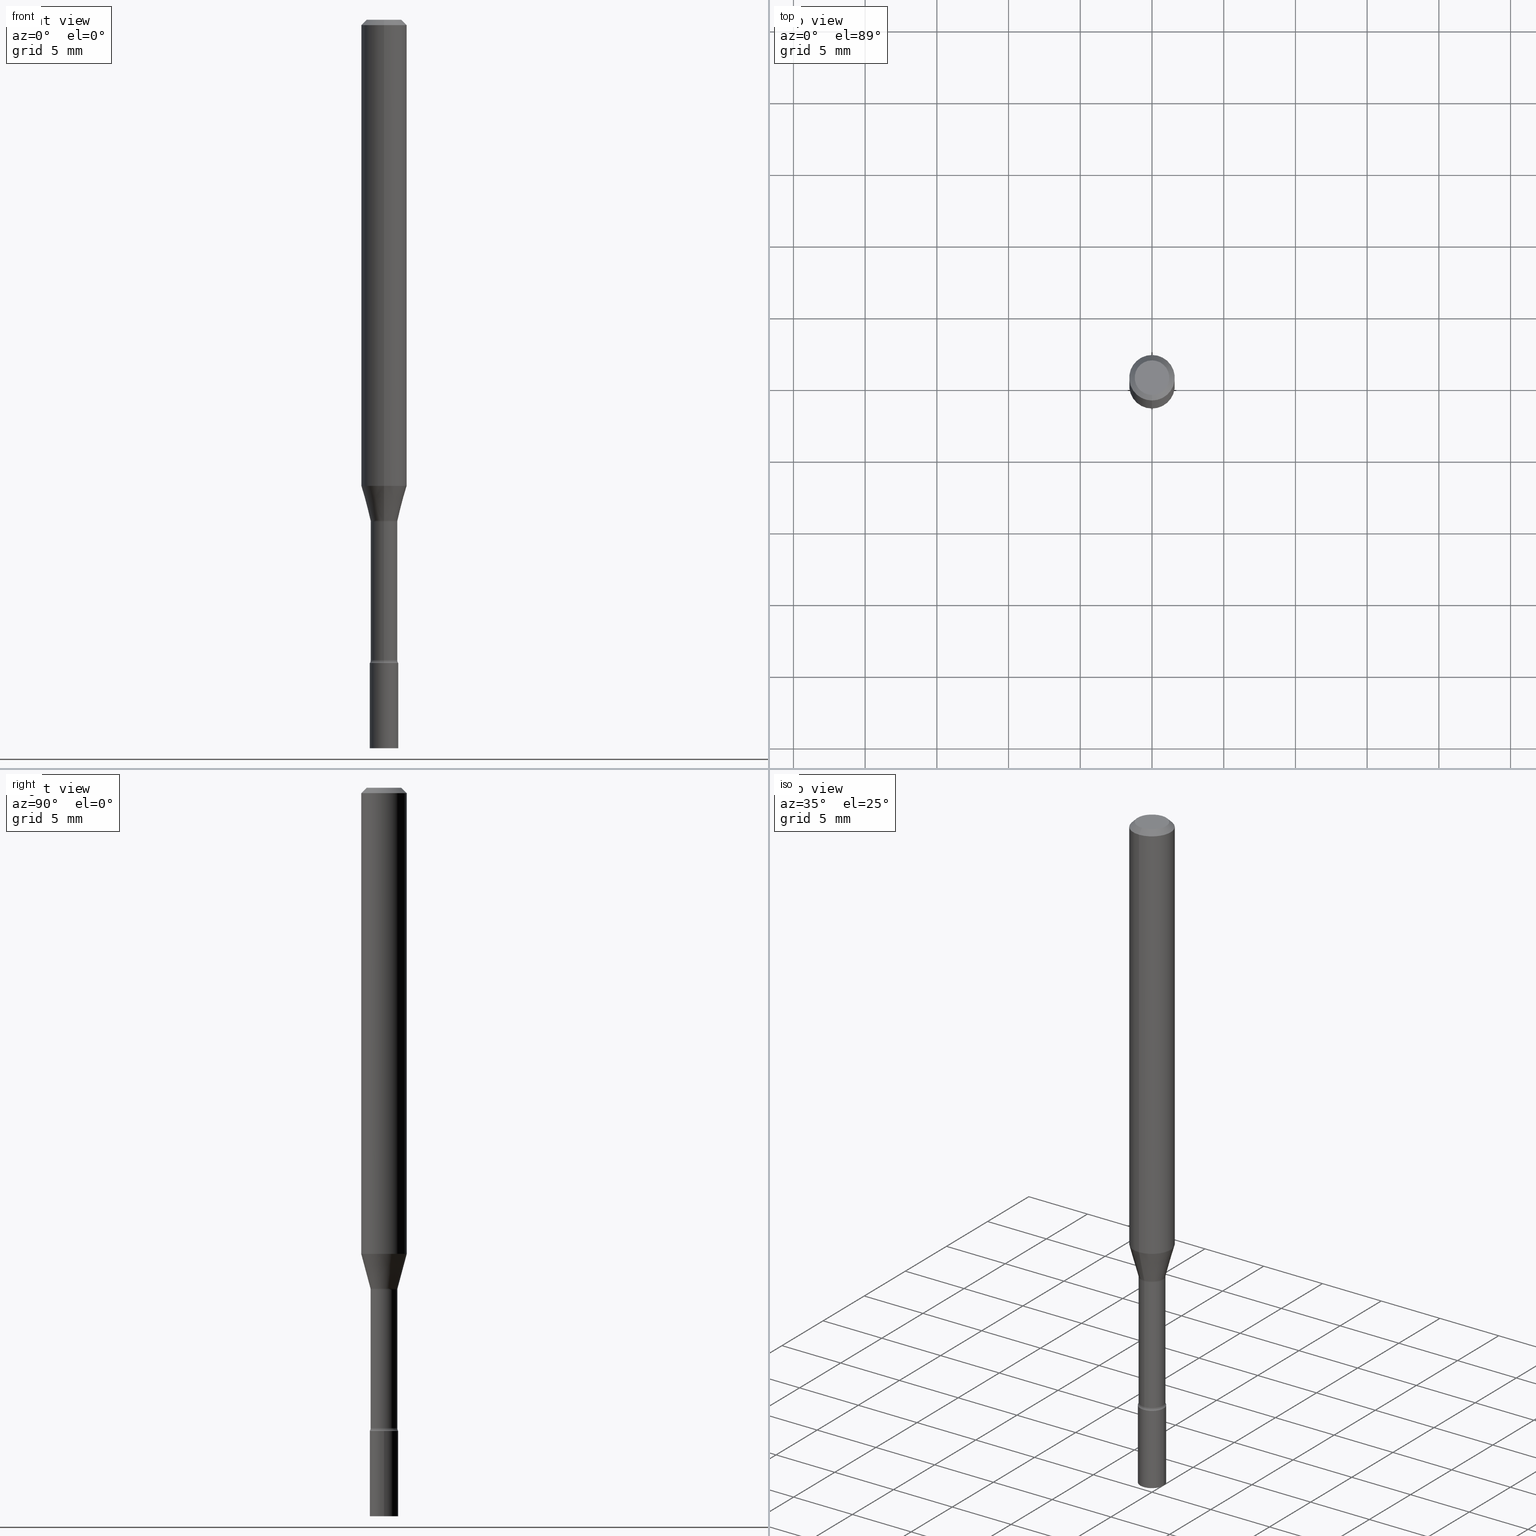
[diagram: canonical four-view strip — front | top / right | iso, engineering-drawing reading convention]
A machine part, canonical four-view strip (front | top / right | iso — engineering-drawing reading convention). The complete STEP part file that produces these views, byte-faithful:
ISO-10303-21;
HEADER;
FILE_DESCRIPTION (( 'STEP AP203' ),
    '1' );
FILE_NAME ('04283.STEP',
    '2024-03-08T22:49:44',
    ( '' ),
    ( '' ),
    'SwSTEP 2.0',
    'SolidWorks 2023',
    '' );
FILE_SCHEMA (( 'CONFIG_CONTROL_DESIGN' ));
ENDSEC;

DATA;
#1 = ORIENTED_EDGE ( 'NONE', *, *, #40, .F. ) ;
#2 = CARTESIAN_POINT ( 'NONE',  ( -4.364351673553912750E-16, -0.06250000000000005551, -0.01499999999999981209 ) ) ;
#3 = CARTESIAN_POINT ( 'NONE',  ( 4.318697911722950844E-29, -6.165956044396995152E-15, -1.766000000000000014 ) ) ;
#4 = ADVANCED_FACE ( 'NONE', ( #241 ), #368, .T. ) ;
#5 = DIRECTION ( 'NONE',  ( -6.982962677686266711E-15, -1.000000000000000000, 3.491516399267517644E-15 ) ) ;
#6 = EDGE_LOOP ( 'NONE', ( #61, #442, #425, #50 ) ) ;
#7 = EDGE_CURVE ( 'NONE', #417, #287, #84, .T. ) ;
#8 = AXIS2_PLACEMENT_3D ( 'NONE', #240, #486, #299 ) ;
#9 = CARTESIAN_POINT ( 'NONE',  ( 3.129010783639058440E-29, -4.467487711346049103E-15, -1.279526486624344761 ) ) ;
#10 = APPROVAL_PERSON_ORGANIZATION ( #418, #242, #257 ) ;
#11 = DIRECTION ( 'NONE',  ( -2.445444323621651242E-29, 3.491516399267517644E-15, 1.000000000000000000 ) ) ;
#12 =( LENGTH_UNIT ( ) NAMED_UNIT ( * ) SI_UNIT ( $, .METRE. ) );
#13 = APPROVAL ( #114, 'UNSPECIFIED' ) ;
#14 = DIRECTION ( 'NONE',  ( -2.445444323621651242E-29, 3.491516399267517644E-15, 1.000000000000000000 ) ) ;
#15 = DATE_AND_TIME ( #460, #510 ) ;
#16 = CIRCLE ( 'NONE', #8, 0.01500000000000001853 ) ;
#17 = PRODUCT_DEFINITION_FORMATION_WITH_SPECIFIED_SOURCE ( 'ANY', '', #282, .NOT_KNOWN. ) ;
#18 = CALENDAR_DATE ( 2024, 8, 3 ) ;
#19 = DIRECTION ( 'NONE',  ( -6.982962677686267499E-15, -1.000000000000000000, 0.000000000000000000 ) ) ;
#20 = DIRECTION ( 'NONE',  ( -2.445468806185136597E-29, 3.491481338843145583E-15, 1.000000000000000000 ) ) ;
#21 = VERTEX_POINT ( 'NONE', #2 ) ;
#22 = DIRECTION ( 'NONE',  ( -6.982962677686265133E-15, -1.000000000000000000, 3.491516399267517250E-15 ) ) ;
#23 = DATE_AND_TIME ( #18, #378 ) ;
#24 = ADVANCED_FACE ( 'NONE', ( #169 ), #155, .T. ) ;
#25 = DIRECTION ( 'NONE',  ( -6.982962677686264344E-15, -1.000000000000000000, 0.000000000000000000 ) ) ;
#26 = ADVANCED_FACE ( 'NONE', ( #130 ), #328, .F. ) ;
#27 = CARTESIAN_POINT ( 'NONE',  ( 3.840629472727447874E-16, 0.04749999999999999362, -1.947592745229183872E-16 ) ) ;
#28 = CARTESIAN_POINT ( 'NONE',  ( -4.364351673553916201E-16, -0.06250000000000000000, 2.182197749542198527E-16 ) ) ;
#29 = AXIS2_PLACEMENT_3D ( 'NONE', #290, #446, #386 ) ;
#30 = FACE_OUTER_BOUND ( 'NONE', #81, .T. ) ;
#31 = ORIENTED_EDGE ( 'NONE', *, *, #515, .T. ) ;
#32 = LINE ( 'NONE', #466, #340 ) ;
#33 = CARTESIAN_POINT ( 'NONE',  ( 3.369794358452343236E-29, -4.811173255826245661E-15, -1.377974787463811079 ) ) ;
#34 = EDGE_CURVE ( 'NONE', #371, #470, #88, .T. ) ;
#35 = CARTESIAN_POINT ( 'NONE',  ( 3.668166485432484237E-31, -5.237274598901286943E-17, -0.01500000000000003067 ) ) ;
#36 = VERTEX_POINT ( 'NONE', #317 ) ;
#37 = VERTEX_POINT ( 'NONE', #294 ) ;
#38 = ORIENTED_EDGE ( 'NONE', *, *, #231, .F. ) ;
#39 = ORIENTED_EDGE ( 'NONE', *, *, #344, .F. ) ;
#40 = EDGE_CURVE ( 'NONE', #470, #21, #121, .T. ) ;
#41 = EDGE_LOOP ( 'NONE', ( #405, #133, #227, #235 ) ) ;
#42 = ORIENTED_EDGE ( 'NONE', *, *, #222, .F. ) ;
#43 = ADVANCED_BREP_SHAPE_REPRESENTATION ( '04283', ( #403, #436, #198 ), #351 ) ;
#44 = AXIS2_PLACEMENT_3D ( 'NONE', #93, #411, #117 ) ;
#45 = EDGE_LOOP ( 'NONE', ( #438, #66, #192, #115 ) ) ;
#46 = CIRCLE ( 'NONE', #341, 0.06250000000000000000 ) ;
#47 = CARTESIAN_POINT ( 'NONE',  ( 7.070328678226049658E-46, -1.009475795043985759E-31, -2.891224555771133613E-17 ) ) ;
#48 = DIRECTION ( 'NONE',  ( -6.982962677686265922E-15, -1.000000000000000000, 3.491516399267517644E-15 ) ) ;
#49 = DIRECTION ( 'NONE',  ( -2.445444323621651242E-29, 3.491516399267517644E-15, 1.000000000000000000 ) ) ;
#50 = ORIENTED_EDGE ( 'NONE', *, *, #482, .F. ) ;
#51 = PERSON_AND_ORGANIZATION ( #319, #173 ) ;
#52 = VECTOR ( 'NONE', #323, 39.37007874015749564 ) ;
#53 = DIRECTION ( 'NONE',  ( -2.445444323621650962E-29, 3.491516399267517644E-15, 1.000000000000000000 ) ) ;
#54 = FACE_OUTER_BOUND ( 'NONE', #71, .T. ) ;
#55 = COORDINATED_UNIVERSAL_TIME_OFFSET ( 5, 0, .BEHIND. ) ;
#56 = CC_DESIGN_DATE_AND_TIME_ASSIGNMENT ( #15, #212, ( #284 ) ) ;
#57 = APPLICATION_PROTOCOL_DEFINITION ( 'international standard', 'config_control_design', 1994, #498 ) ;
#58 = AXIS2_PLACEMENT_3D ( 'NONE', #35, #358, #391 ) ;
#59 = EDGE_CURVE ( 'NONE', #36, #37, #516, .T. ) ;
#60 = DIRECTION ( 'NONE',  ( -2.445444323621651242E-29, 3.491516399267517644E-15, 1.000000000000000000 ) ) ;
#61 = ORIENTED_EDGE ( 'NONE', *, *, #260, .T. ) ;
#62 = FACE_OUTER_BOUND ( 'NONE', #80, .T. ) ;
#63 = CARTESIAN_POINT ( 'NONE',  ( 0.000000000000000000, 0.000000000000000000, 0.000000000000000000 ) ) ;
#64 = CC_DESIGN_DATE_AND_TIME_ASSIGNMENT ( #356, #220, ( #123 ) ) ;
#65 = DIRECTION ( 'NONE',  ( 2.438088387897960049E-29, -3.491481338843145188E-15, -1.000000000000000000 ) ) ;
#66 = ORIENTED_EDGE ( 'NONE', *, *, #370, .T. ) ;
#67 = CIRCLE ( 'NONE', #29, 0.03665000000000003672 ) ;
#68 = ORIENTED_EDGE ( 'NONE', *, *, #182, .F. ) ;
#69 = FACE_OUTER_BOUND ( 'NONE', #41, .T. ) ;
#70 = DIRECTION ( 'NONE',  ( -6.982962677686265922E-15, -1.000000000000000000, 3.491516399267517644E-15 ) ) ;
#71 = EDGE_LOOP ( 'NONE', ( #158, #72 ) ) ;
#72 = ORIENTED_EDGE ( 'NONE', *, *, #7, .T. ) ;
#73 = ORIENTED_EDGE ( 'NONE', *, *, #344, .T. ) ;
#74 = VERTEX_POINT ( 'NONE', #205 ) ;
#75 = AXIS2_PLACEMENT_3D ( 'NONE', #311, #65, #224 ) ;
#76 = CC_DESIGN_APPROVAL ( #168, ( #17 ) ) ;
#77 = DIRECTION ( 'NONE',  ( 1.000000000000000000, -6.982962677686265922E-15, 4.876176775795935793E-29 ) ) ;
#78 = ORIENTED_EDGE ( 'NONE', *, *, #182, .T. ) ;
#79 = DIRECTION ( 'NONE',  ( 7.105427357601001859E-15, 1.000000000000000000, 0.000000000000000000 ) ) ;
#80 = EDGE_LOOP ( 'NONE', ( #39, #31, #226, #68 ) ) ;
#81 = EDGE_LOOP ( 'NONE', ( #38, #457, #406, #82 ) ) ;
#82 = ORIENTED_EDGE ( 'NONE', *, *, #40, .T. ) ;
#83 = FACE_OUTER_BOUND ( 'NONE', #338, .T. ) ;
#84 = CIRCLE ( 'NONE', #348, 0.04749999999999999362 ) ;
#85 = CARTESIAN_POINT ( 'NONE',  ( 3.316907271900976096E-16, 0.04749999999999999362, -1.803031517440627623E-16 ) ) ;
#86 = CIRCLE ( 'NONE', #186, 0.01500000000000001853 ) ;
#87 = CIRCLE ( 'NONE', #495, 0.01500000000000001853 ) ;
#88 = LINE ( 'NONE', #249, #448 ) ;
#89 = ORIENTED_EDGE ( 'NONE', *, *, #295, .F. ) ;
#90 = CARTESIAN_POINT ( 'NONE',  ( 4.890937612370273194E-29, -6.982962677686291165E-15, -2.000000000000000000 ) ) ;
#91 = DIRECTION ( 'NONE',  ( -2.438088387897960049E-29, 3.491481338843145188E-15, 1.000000000000000000 ) ) ;
#92 = EDGE_LOOP ( 'NONE', ( #364, #118, #239, #409 ) ) ;
#93 = CARTESIAN_POINT ( 'NONE',  ( 4.318697911722950844E-29, -6.165956044396995152E-15, -1.766000000000000014 ) ) ;
#94 = CARTESIAN_POINT ( 'NONE',  ( 3.668166485432484237E-31, -5.237274598901286943E-17, -0.01500000000000003067 ) ) ;
#95 = LINE ( 'NONE', #412, #334 ) ;
#96 = FACE_OUTER_BOUND ( 'NONE', #119, .T. ) ;
#97 =( NAMED_UNIT ( * ) PLANE_ANGLE_UNIT ( ) SI_UNIT ( $, .RADIAN. ) );
#98 = CIRCLE ( 'NONE', #164, 0.03665000000000000202 ) ;
#99 = CC_DESIGN_APPROVAL ( #13, ( #123 ) ) ;
#100 = PERSON_AND_ORGANIZATION ( #319, #173 ) ;
#101 = CARTESIAN_POINT ( 'NONE',  ( 3.360266708626760851E-29, -4.797666504100794371E-15, -1.374092501787273157 ) ) ;
#102 = CC_DESIGN_PERSON_AND_ORGANIZATION_ASSIGNMENT ( #100, #146, ( #17 ) ) ;
#103 = LINE ( 'NONE', #145, #415 ) ;
#104 = PERSON_AND_ORGANIZATION_ROLE ( 'design_owner' ) ;
#105 = FACE_OUTER_BOUND ( 'NONE', #132, .T. ) ;
#106 = AXIS2_PLACEMENT_3D ( 'NONE', #217, #11, #22 ) ;
#107 = TOROIDAL_SURFACE ( 'NONE', #271, 0.05165000000000000840, 0.01500000000000002373 ) ;
#108 = COORDINATED_UNIVERSAL_TIME_OFFSET ( 5, 0, .BEHIND. ) ;
#109 = DIRECTION ( 'NONE',  ( 2.445444323621651242E-29, -3.491516399267517644E-15, -1.000000000000000000 ) ) ;
#110 = DIRECTION ( 'NONE',  ( -2.445444323621651242E-29, 3.491516399267517644E-15, 1.000000000000000000 ) ) ;
#111 = DIRECTION ( 'NONE',  ( -6.982962677686265922E-15, -1.000000000000000000, 3.491516399267517644E-15 ) ) ;
#112 = CIRCLE ( 'NONE', #463, 0.03716111260566398733 ) ;
#113 = CIRCLE ( 'NONE', #159, 0.03716111260566398733 ) ;
#114 = APPROVAL_STATUS ( 'not_yet_approved' ) ;
#115 = ORIENTED_EDGE ( 'NONE', *, *, #213, .F. ) ;
#116 = CARTESIAN_POINT ( 'NONE',  ( 4.318654675515835733E-29, -6.166017961106435331E-15, -1.766000000000000014 ) ) ;
#117 = DIRECTION ( 'NONE',  ( 1.000000000000000000, -6.982962677686258033E-15, 0.000000000000000000 ) ) ;
#118 = ORIENTED_EDGE ( 'NONE', *, *, #202, .T. ) ;
#119 = EDGE_LOOP ( 'NONE', ( #361, #443, #273, #211 ) ) ;
#120 = DIRECTION ( 'NONE',  ( -2.445444323621651242E-29, 3.491516399267517644E-15, 1.000000000000000000 ) ) ;
#121 = CIRCLE ( 'NONE', #221, 0.06250000000000000000 ) ;
#122 = EDGE_CURVE ( 'NONE', #402, #371, #214, .T. ) ;
#123 = SECURITY_CLASSIFICATION ( '', '', #147 ) ;
#124 = EDGE_LOOP ( 'NONE', ( #512, #277, #230, #434 ) ) ;
#125 = DIRECTION ( 'NONE',  ( 1.000000000000000000, -6.982962677686265922E-15, 4.876176775795935793E-29 ) ) ;
#126 = EDGE_CURVE ( 'NONE', #410, #285, #112, .T. ) ;
#127 = CARTESIAN_POINT ( 'NONE',  ( 0.000000000000000000, 0.000000000000000000, 0.000000000000000000 ) ) ;
#128 = CYLINDRICAL_SURFACE ( 'NONE', #223, 0.06250000000000000000 ) ;
#129 = CARTESIAN_POINT ( 'NONE',  ( 4.298985324572002623E-29, -6.137811694322366834E-15, -1.757939137763241400 ) ) ;
#130 = FACE_OUTER_BOUND ( 'NONE', #429, .T. ) ;
#131 = PLANE ( 'NONE',  #270 ) ;
#132 = EDGE_LOOP ( 'NONE', ( #325, #160, #511, #237 ) ) ;
#133 = ORIENTED_EDGE ( 'NONE', *, *, #126, .F. ) ;
#134 = DIRECTION ( 'NONE',  ( -6.982962677686266711E-15, -1.000000000000000000, 3.491516399267517644E-15 ) ) ;
#135 = DIRECTION ( 'NONE',  ( -2.445444323621651242E-29, 3.491516399267517644E-15, 1.000000000000000000 ) ) ;
#136 = EDGE_CURVE ( 'NONE', #287, #470, #137, .T. ) ;
#137 = LINE ( 'NONE', #264, #509 ) ;
#138 = DIRECTION ( 'NONE',  ( 1.000000000000000000, -6.982962677686265922E-15, 4.876176775795935793E-29 ) ) ;
#139 = AXIS2_PLACEMENT_3D ( 'NONE', #153, #469, #77 ) ;
#140 = CARTESIAN_POINT ( 'NONE',  ( 4.440892098500935790E-16, 0.06249999999999550360, -1.279526486624345205 ) ) ;
#141 = FACE_OUTER_BOUND ( 'NONE', #6, .T. ) ;
#142 = COORDINATED_UNIVERSAL_TIME_OFFSET ( 5, 0, .BEHIND. ) ;
#143 = CARTESIAN_POINT ( 'NONE',  ( 3.540673979986520218E-16, 0.03716111260565919255, -1.374092501787273157 ) ) ;
#144 = LINE ( 'NONE', #312, #148 ) ;
#145 = CARTESIAN_POINT ( 'NONE',  ( -0.03899999999999999994, 2.771116669464390721E-16, -1.918384685199413078E-30 ) ) ;
#146 = PERSON_AND_ORGANIZATION_ROLE ( 'creator' ) ;
#147 = SECURITY_CLASSIFICATION_LEVEL ( 'unclassified' ) ;
#148 = VECTOR ( 'NONE', #355, 39.37007874015748143 ) ;
#149 = DESIGN_CONTEXT ( 'detailed design', #389, 'design' ) ;
#150 = AXIS2_PLACEMENT_3D ( 'NONE', #345, #455, #161 ) ;
#151 = ADVANCED_FACE ( 'NONE', ( #141 ), #422, .T. ) ;
#152 = DIRECTION ( 'NONE',  ( -6.982962677686266711E-15, -1.000000000000000000, 3.491516399267517644E-15 ) ) ;
#153 = CARTESIAN_POINT ( 'NONE',  ( 0.000000000000000000, 0.000000000000000000, 0.000000000000000000 ) ) ;
#154 = ADVANCED_FACE ( 'NONE', ( #96 ), #185, .T. ) ;
#155 = CONICAL_SURFACE ( 'NONE', #254, 0.03716111260566398733, 0.2617993877991501850 ) ;
#156 = CARTESIAN_POINT ( 'NONE',  ( -3.773273898774340269E-16, -0.04749999999999999362, 1.369347834074957643E-16 ) ) ;
#157 = AXIS2_PLACEMENT_3D ( 'NONE', #85, #404, #327 ) ;
#158 = ORIENTED_EDGE ( 'NONE', *, *, #424, .T. ) ;
#159 = AXIS2_PLACEMENT_3D ( 'NONE', #101, #14, #493 ) ;
#160 = ORIENTED_EDGE ( 'NONE', *, *, #189, .T. ) ;
#161 = DIRECTION ( 'NONE',  ( -6.982962677686265133E-15, -1.000000000000000000, 0.000000000000000000 ) ) ;
#162 = DIRECTION ( 'NONE',  ( -6.982962677686265922E-15, -1.000000000000000000, 3.483106191921935554E-15 ) ) ;
#163 = ORIENTED_EDGE ( 'NONE', *, *, #305, .T. ) ;
#164 = AXIS2_PLACEMENT_3D ( 'NONE', #246, #49, #454 ) ;
#165 = VERTEX_POINT ( 'NONE', #219 ) ;
#166 = DIRECTION ( 'NONE',  ( -6.982962677686267499E-15, -1.000000000000000000, 0.000000000000000000 ) ) ;
#167 = DIRECTION ( 'NONE',  ( -2.445444323621651242E-29, 3.491516399267517644E-15, 1.000000000000000000 ) ) ;
#168 = APPROVAL ( #180, 'UNSPECIFIED' ) ;
#169 = FACE_OUTER_BOUND ( 'NONE', #374, .T. ) ;
#170 = DIRECTION ( 'NONE',  ( 1.000000000000000000, -7.105427357601001070E-15, 4.926315937908447209E-29 ) ) ;
#171 = CIRCLE ( 'NONE', #384, 0.01500000000000001853 ) ;
#172 = LINE ( 'NONE', #278, #452 ) ;
#173 = ORGANIZATION ( 'UNSPECIFIED', 'UNSPECIFIED', '' ) ;
#174 = DIRECTION ( 'NONE',  ( -2.445444323621651242E-29, 3.491516399267517644E-15, 1.000000000000000000 ) ) ;
#175 = CARTESIAN_POINT ( 'NONE',  ( -3.606700223024619297E-16, -0.05165000000000482400, -1.377974787463810857 ) ) ;
#176 = PERSON_AND_ORGANIZATION ( #319, #173 ) ;
#177 = ADVANCED_FACE ( 'NONE', ( #30 ), #487, .T. ) ;
#178 = CARTESIAN_POINT ( 'NONE',  ( 0.000000000000000000, 0.000000000000000000, 0.000000000000000000 ) ) ;
#179 = ADVANCED_FACE ( 'NONE', ( #352 ), #506, .T. ) ;
#180 = APPROVAL_STATUS ( 'not_yet_approved' ) ;
#181 = VECTOR ( 'NONE', #110, 39.37007874015748143 ) ;
#182 = EDGE_CURVE ( 'NONE', #371, #402, #426, .T. ) ;
#183 = APPROVAL_DATE_TIME ( #23, #242 ) ;
#184 = DIRECTION ( 'NONE',  ( 1.000000000000000000, -6.982962677686258033E-15, 0.000000000000000000 ) ) ;
#185 = CYLINDRICAL_SURFACE ( 'NONE', #280, 0.06250000000000000000 ) ;
#186 = AXIS2_PLACEMENT_3D ( 'NONE', #175, #447, #19 ) ;
#187 = UNCERTAINTY_MEASURE_WITH_UNIT (LENGTH_MEASURE( 1.000000000000000082E-05 ), #459, 'distance_accuracy_value', 'NONE');
#188 = CARTESIAN_POINT ( 'NONE',  ( -2.594946623866146563E-16, -0.03716111260566878904, -1.374092501787273157 ) ) ;
#189 = EDGE_CURVE ( 'NONE', #285, #194, #87, .T. ) ;
#190 = ORIENTED_EDGE ( 'NONE', *, *, #428, .T. ) ;
#191 = ORIENTED_EDGE ( 'NONE', *, *, #34, .F. ) ;
#192 = ORIENTED_EDGE ( 'NONE', *, *, #301, .T. ) ;
#193 = DIRECTION ( 'NONE',  ( -2.445444323621651242E-29, 3.491516399267517644E-15, 1.000000000000000000 ) ) ;
#194 = VERTEX_POINT ( 'NONE', #238 ) ;
#195 = VERTEX_POINT ( 'NONE', #196 ) ;
#196 = CARTESIAN_POINT ( 'NONE',  ( 2.687627898013010678E-16, 0.03664999999999390273, -1.757939137763241400 ) ) ;
#197 = CONICAL_SURFACE ( 'NONE', #233, 0.06250000000000000000, 0.7853981633974483900 ) ;
#198 = AXIS2_PLACEMENT_3D ( 'NONE', #178, #261, #296 ) ;
#199 = ORIENTED_EDGE ( 'NONE', *, *, #295, .T. ) ;
#200 = DIRECTION ( 'NONE',  ( -2.445444323621651242E-29, 3.491516399267517644E-15, 1.000000000000000000 ) ) ;
#201 = DIRECTION ( 'NONE',  ( -2.445444323621651242E-29, 3.491516399267517644E-15, 1.000000000000000000 ) ) ;
#202 = EDGE_CURVE ( 'NONE', #195, #484, #399, .T. ) ;
#203 = CARTESIAN_POINT ( 'NONE',  ( 7.070328678226049658E-46, -1.009475795043985759E-31, -2.891224555771133613E-17 ) ) ;
#204 = DIRECTION ( 'NONE',  ( -2.445444323621651242E-29, 3.491516399267517644E-15, 1.000000000000000000 ) ) ;
#205 = CARTESIAN_POINT ( 'NONE',  ( -2.723355444297211781E-16, -0.03900000000000616168, -1.765999999999999792 ) ) ;
#206 = CIRCLE ( 'NONE', #502, 0.03899999999999999994 ) ;
#207 = CARTESIAN_POINT ( 'NONE',  ( 0.000000000000000000, 0.000000000000000000, 0.000000000000000000 ) ) ;
#208 = ADVANCED_FACE ( 'NONE', ( #369 ), #131, .T. ) ;
#209 = DIRECTION ( 'NONE',  ( -2.445444323621651242E-29, 3.491516399267517644E-15, 1.000000000000000000 ) ) ;
#210 = ORIENTED_EDGE ( 'NONE', *, *, #59, .T. ) ;
#211 = ORIENTED_EDGE ( 'NONE', *, *, #305, .F. ) ;
#212 = DATE_TIME_ROLE ( 'creation_date' ) ;
#213 = EDGE_CURVE ( 'NONE', #484, #74, #171, .T. ) ;
#214 = CIRCLE ( 'NONE', #255, 0.06250000000000000000 ) ;
#215 = AXIS2_PLACEMENT_3D ( 'NONE', #490, #167, #372 ) ;
#216 = CARTESIAN_POINT ( 'NONE',  ( 4.318654675515835733E-29, -6.166017961106435331E-15, -1.766000000000000014 ) ) ;
#217 = CARTESIAN_POINT ( 'NONE',  ( 0.000000000000000000, 0.000000000000000000, 0.000000000000000000 ) ) ;
#218 = ADVANCED_FACE ( 'NONE', ( #83 ), #128, .T. ) ;
#219 = CARTESIAN_POINT ( 'NONE',  ( -2.559255821371679685E-16, -0.03665000000000481761, -1.377974787463811079 ) ) ;
#220 = DATE_TIME_ROLE ( 'classification_date' ) ;
#221 = AXIS2_PLACEMENT_3D ( 'NONE', #373, #209, #453 ) ;
#222 = EDGE_CURVE ( 'NONE', #37, #36, #298, .T. ) ;
#223 = AXIS2_PLACEMENT_3D ( 'NONE', #243, #408, #48 ) ;
#224 = DIRECTION ( 'NONE',  ( -1.000000000000000000, 6.982962677686265922E-15, -4.876176775795935793E-29 ) ) ;
#225 = DIRECTION ( 'NONE',  ( -2.445468806185136877E-29, 3.491481338843145188E-15, 1.000000000000000000 ) ) ;
#226 = ORIENTED_EDGE ( 'NONE', *, *, #314, .T. ) ;
#227 = ORIENTED_EDGE ( 'NONE', *, *, #435, .T. ) ;
#228 = EDGE_CURVE ( 'NONE', #194, #165, #98, .T. ) ;
#229 = APPROVAL_DATE_TIME ( #268, #13 ) ;
#230 = ORIENTED_EDGE ( 'NONE', *, *, #213, .T. ) ;
#231 = EDGE_CURVE ( 'NONE', #417, #21, #95, .T. ) ;
#232 = VERTEX_POINT ( 'NONE', #349 ) ;
#233 = AXIS2_PLACEMENT_3D ( 'NONE', #310, #109, #390 ) ;
#234 = AXIS2_PLACEMENT_3D ( 'NONE', #207, #492, #138 ) ;
#235 = ORIENTED_EDGE ( 'NONE', *, *, #468, .T. ) ;
#236 = LINE ( 'NONE', #321, #52 ) ;
#237 = ORIENTED_EDGE ( 'NONE', *, *, #435, .F. ) ;
#238 = CARTESIAN_POINT ( 'NONE',  ( 2.604139126561198240E-16, 0.03664999999999519337, -1.377974787463811079 ) ) ;
#239 = ORIENTED_EDGE ( 'NONE', *, *, #482, .T. ) ;
#240 = CARTESIAN_POINT ( 'NONE',  ( 3.669953230201350945E-16, 0.05164999999999391606, -1.757939137763241622 ) ) ;
#241 = FACE_OUTER_BOUND ( 'NONE', #92, .T. ) ;
#242 = APPROVAL ( #382, 'UNSPECIFIED' ) ;
#243 = CARTESIAN_POINT ( 'NONE',  ( 0.000000000000000000, 0.000000000000000000, 0.000000000000000000 ) ) ;
#244 = AXIS2_PLACEMENT_3D ( 'NONE', #90, #20, #184 ) ;
#245 = DIRECTION ( 'NONE',  ( -2.445444323621651242E-29, 3.491516399267517644E-15, 1.000000000000000000 ) ) ;
#246 = CARTESIAN_POINT ( 'NONE',  ( 3.369760622097127758E-29, -4.811221568207068873E-15, -1.377974787463811079 ) ) ;
#247 = EDGE_CURVE ( 'NONE', #74, #363, #392, .T. ) ;
#248 = DIRECTION ( 'NONE',  ( -2.445444323621651242E-29, 3.491516399267517644E-15, 1.000000000000000000 ) ) ;
#249 = CARTESIAN_POINT ( 'NONE',  ( 4.440892098500625669E-16, 0.06250000000000000000, -2.182197749542198527E-16 ) ) ;
#250 = DIRECTION ( 'NONE',  ( -2.445444323621651242E-29, 3.491516399267517644E-15, 1.000000000000000000 ) ) ;
#251 = DIRECTION ( 'NONE',  ( -2.445468806185136597E-29, 3.491481338843145583E-15, 1.000000000000000000 ) ) ;
#252 = ADVANCED_FACE ( 'NONE', ( #54 ), #283, .F. ) ;
#253 = DIRECTION ( 'NONE',  ( -6.982962677686265133E-15, -1.000000000000000000, 3.491516399267517250E-15 ) ) ;
#254 = AXIS2_PLACEMENT_3D ( 'NONE', #414, #333, #488 ) ;
#255 = AXIS2_PLACEMENT_3D ( 'NONE', #9, #174, #380 ) ;
#256 = CC_DESIGN_SECURITY_CLASSIFICATION ( #123, ( #17 ) ) ;
#257 = APPROVAL_ROLE ( '' ) ;
#258 = CARTESIAN_POINT ( 'NONE',  ( 4.890937612370273194E-29, -6.982962677686291165E-15, -2.000000000000000000 ) ) ;
#259 = DIRECTION ( 'NONE',  ( -2.445444323621651242E-29, 3.491516399267517644E-15, 1.000000000000000000 ) ) ;
#260 = EDGE_CURVE ( 'NONE', #484, #195, #67, .T. ) ;
#261 = DIRECTION ( 'NONE',  ( 0.000000000000000000, 0.000000000000000000, 1.000000000000000000 ) ) ;
#262 = CARTESIAN_POINT ( 'NONE',  ( 2.771116669464822622E-16, 0.03899999999999383127, -1.766000000000000236 ) ) ;
#263 = DIRECTION ( 'NONE',  ( -2.445468806185136877E-29, 3.491481338843145188E-15, 1.000000000000000000 ) ) ;
#264 = CARTESIAN_POINT ( 'NONE',  ( 4.364351673553919652E-16, 0.06249999999999995143, -0.01500000000000024751 ) ) ;
#265 = CIRCLE ( 'NONE', #407, 0.03899999999999999994 ) ;
#266 = APPLICATION_PROTOCOL_DEFINITION ( 'international standard', 'config_control_design', 1994, #389 ) ;
#267 = EDGE_CURVE ( 'NONE', #195, #194, #499, .T. ) ;
#268 = DATE_AND_TIME ( #507, #518 ) ;
#269 = AXIS2_PLACEMENT_3D ( 'NONE', #291, #53, #450 ) ;
#270 = AXIS2_PLACEMENT_3D ( 'NONE', #485, #91, #125 ) ;
#271 = AXIS2_PLACEMENT_3D ( 'NONE', #33, #395, #70 ) ;
#272 = PERSON_AND_ORGANIZATION ( #319, #173 ) ;
#273 = ORIENTED_EDGE ( 'NONE', *, *, #478, .F. ) ;
#274 = ADVANCED_FACE ( 'NONE', ( #388 ), #197, .T. ) ;
#275 = PRODUCT_DEFINITION_SHAPE ( 'NONE', 'NONE',  #284 ) ;
#276 = ORIENTED_EDGE ( 'NONE', *, *, #314, .F. ) ;
#277 = ORIENTED_EDGE ( 'NONE', *, *, #260, .F. ) ;
#278 = CARTESIAN_POINT ( 'NONE',  ( -2.559255821372017909E-16, -0.03665000000000002284, 1.279640760331545798E-16 ) ) ;
#279 = ORIENTED_EDGE ( 'NONE', *, *, #122, .F. ) ;
#280 = AXIS2_PLACEMENT_3D ( 'NONE', #63, #430, #398 ) ;
#281 = LOCAL_TIME ( 17, 49, 44.00000000000000000, #108 ) ;
#282 = PRODUCT ( '04283', '04283', '', ( #304 ) ) ;
#283 = PLANE ( 'NONE',  #157 ) ;
#284 = PRODUCT_DEFINITION ( 'UNKNOWN', '', #17, #149 ) ;
#285 = VERTEX_POINT ( 'NONE', #143 ) ;
#286 = DIRECTION ( 'NONE',  ( 1.000000000000000000, -6.982962677686258033E-15, 0.000000000000000000 ) ) ;
#287 = VERTEX_POINT ( 'NONE', #27 ) ;
#288 = CARTESIAN_POINT ( 'NONE',  ( -3.606700223024530550E-16, -0.05165000000000619790, -1.757939137763241177 ) ) ;
#289 = ORIENTED_EDGE ( 'NONE', *, *, #385, .F. ) ;
#290 = CARTESIAN_POINT ( 'NONE',  ( 4.298942285715458572E-29, -6.137873328414557484E-15, -1.757939137763241400 ) ) ;
#291 = CARTESIAN_POINT ( 'NONE',  ( 2.723355444298075090E-16, 0.03899999999999383127, -1.766000000000000014 ) ) ;
#292 = ADVANCED_FACE ( 'NONE', ( #420 ), #504, .T. ) ;
#293 = CIRCLE ( 'NONE', #150, 0.03665000000000000202 ) ;
#294 = CARTESIAN_POINT ( 'NONE',  ( -0.03899999999999999994, -6.297347694095203445E-15, -1.766000000000000014 ) ) ;
#295 = EDGE_CURVE ( 'NONE', #232, #36, #32, .T. ) ;
#296 = DIRECTION ( 'NONE',  ( 1.000000000000000000, 0.000000000000000000, 0.000000000000000000 ) ) ;
#297 = CARTESIAN_POINT ( 'NONE',  ( 2.604139126560768311E-16, 0.03665000000000002284, -1.279640760331545798E-16 ) ) ;
#298 = CIRCLE ( 'NONE', #421, 0.03899999999999999994 ) ;
#299 = DIRECTION ( 'NONE',  ( 7.105427357601001859E-15, 1.000000000000000000, 0.000000000000000000 ) ) ;
#300 = AXIS2_PLACEMENT_3D ( 'NONE', #129, #458, #152 ) ;
#301 = EDGE_CURVE ( 'NONE', #363, #74, #265, .T. ) ;
#302 = DIRECTION ( 'NONE',  ( 4.937700262164548042E-15, 0.7071067811865451302, -0.7071067811865499042 ) ) ;
#303 = EDGE_LOOP ( 'NONE', ( #289, #190, #199, #42 ) ) ;
#304 = MECHANICAL_CONTEXT ( 'NONE', #498, 'mechanical' ) ;
#305 = EDGE_CURVE ( 'NONE', #402, #21, #465, .T. ) ;
#306 = DIRECTION ( 'NONE',  ( -6.982962677686266711E-15, -1.000000000000000000, 0.000000000000000000 ) ) ;
#307 = PERSON_AND_ORGANIZATION ( #319, #173 ) ;
#308 = PERSON_AND_ORGANIZATION ( #319, #173 ) ;
#309 = APPROVAL_PERSON_ORGANIZATION ( #383, #168, #335 ) ;
#310 = CARTESIAN_POINT ( 'NONE',  ( 3.668166485432484237E-31, -5.237274598901286943E-17, -0.01500000000000003067 ) ) ;
#311 = CARTESIAN_POINT ( 'NONE',  ( 2.723355444298132776E-16, 0.03899999999999301248, -2.000000000000000000 ) ) ;
#312 = CARTESIAN_POINT ( 'NONE',  ( 2.640455861472099224E-16, 0.03716111260565919255, -1.374092501787273157 ) ) ;
#313 = ORIENTED_EDGE ( 'NONE', *, *, #331, .F. ) ;
#314 = EDGE_CURVE ( 'NONE', #410, #402, #236, .T. ) ;
#315 = AXIS2_PLACEMENT_3D ( 'NONE', #203, #135, #134 ) ;
#316 = CONICAL_SURFACE ( 'NONE', #437, 0.03716111260566398733, 0.2617993877991501850 ) ;
#317 = CARTESIAN_POINT ( 'NONE',  ( 0.03899999999999999994, -6.438291588826759175E-15, -1.766000000000000014 ) ) ;
#318 = ORIENTED_EDGE ( 'NONE', *, *, #136, .F. ) ;
#319 = PERSON ( 'UNSPECIFIED', 'UNSPECIFIED', 'UNSPECIFIED', ('UNSPECIFIED'), ('UNSPECIFIED'), ('UNSPECIFIED') ) ;
#320 = CARTESIAN_POINT ( 'NONE',  ( 3.360266708626760851E-29, -4.797666504100794371E-15, -1.374092501787273157 ) ) ;
#321 = CARTESIAN_POINT ( 'NONE',  ( -2.594946623866146563E-16, -0.03716111260566878904, -1.374092501787273157 ) ) ;
#322 = AXIS2_PLACEMENT_3D ( 'NONE', #419, #481, #519 ) ;
#323 = DIRECTION ( 'NONE',  ( -1.807323732225329350E-15, -0.2588190451025180194, 0.9659258262890689783 ) ) ;
#324 = ORIENTED_EDGE ( 'NONE', *, *, #222, .T. ) ;
#325 = ORIENTED_EDGE ( 'NONE', *, *, #515, .F. ) ;
#326 = DIRECTION ( 'NONE',  ( -6.982962677686265922E-15, -1.000000000000000000, 0.000000000000000000 ) ) ;
#327 = DIRECTION ( 'NONE',  ( 6.982962677686265922E-15, 1.000000000000000000, -3.491516399267517644E-15 ) ) ;
#328 = PLANE ( 'NONE',  #269 ) ;
#329 = DIRECTION ( 'NONE',  ( 1.000000000000000000, -6.982962677686258033E-15, 0.000000000000000000 ) ) ;
#330 = DIMENSIONAL_EXPONENTS ( 1.000000000000000000, 0.000000000000000000, 0.000000000000000000, 0.000000000000000000, 0.000000000000000000, 0.000000000000000000, 0.000000000000000000 ) ;
#331 = EDGE_CURVE ( 'NONE', #232, #514, #471, .T. ) ;
#332 = DIRECTION ( 'NONE',  ( -2.445468806185136597E-29, 3.491481338843145583E-15, 1.000000000000000000 ) ) ;
#333 = DIRECTION ( 'NONE',  ( -2.445444323621651242E-29, 3.491516399267517644E-15, 1.000000000000000000 ) ) ;
#334 = VECTOR ( 'NONE', #377, 39.37007874015748143 ) ;
#335 = APPROVAL_ROLE ( '' ) ;
#336 =( NAMED_UNIT ( * ) SI_UNIT ( $, .STERADIAN. ) SOLID_ANGLE_UNIT ( ) );
#337 = CARTESIAN_POINT ( 'NONE',  ( 3.369794358452343236E-29, -4.811173255826245661E-15, -1.377974787463811079 ) ) ;
#338 = EDGE_LOOP ( 'NONE', ( #191, #78, #163, #1 ) ) ;
#339 = CC_DESIGN_PERSON_AND_ORGANIZATION_ASSIGNMENT ( #51, #104, ( #282 ) ) ;
#340 = VECTOR ( 'NONE', #225, 39.37007874015748143 ) ;
#341 = AXIS2_PLACEMENT_3D ( 'NONE', #94, #250, #162 ) ;
#342 = APPROVAL_DATE_TIME ( #413, #168 ) ;
#343 = CARTESIAN_POINT ( 'NONE',  ( -0.03899999999999999994, -6.297347694095203445E-15, -2.000000000000000000 ) ) ;
#344 = EDGE_CURVE ( 'NONE', #285, #371, #144, .T. ) ;
#345 = CARTESIAN_POINT ( 'NONE',  ( 3.369760622097127758E-29, -4.811221568207068873E-15, -1.377974787463811079 ) ) ;
#346 = DIRECTION ( 'NONE',  ( -2.445444323621651242E-29, 3.491516399267517644E-15, 1.000000000000000000 ) ) ;
#347 = CALENDAR_DATE ( 2024, 8, 3 ) ;
#348 = AXIS2_PLACEMENT_3D ( 'NONE', #47, #200, #5 ) ;
#349 = CARTESIAN_POINT ( 'NONE',  ( 0.03899999999999999994, -7.255298222116054399E-15, -2.000000000000000000 ) ) ;
#350 = AXIS2_PLACEMENT_3D ( 'NONE', #366, #201, #326 ) ;
#351 =( GEOMETRIC_REPRESENTATION_CONTEXT ( 3 ) GLOBAL_UNCERTAINTY_ASSIGNED_CONTEXT ( ( #187 ) ) GLOBAL_UNIT_ASSIGNED_CONTEXT ( ( #459, #97, #336 ) ) REPRESENTATION_CONTEXT ( 'NONE', 'WORKASPACE' ) );
#352 = FACE_OUTER_BOUND ( 'NONE', #303, .T. ) ;
#353 = COORDINATED_UNIVERSAL_TIME_OFFSET ( 5, 0, .BEHIND. ) ;
#354 = DIRECTION ( 'NONE',  ( -2.445444323621651242E-29, 3.491516399267517644E-15, 1.000000000000000000 ) ) ;
#355 = DIRECTION ( 'NONE',  ( 1.839019923739599526E-15, 0.2588190451025248473, 0.9659258262890670910 ) ) ;
#356 = DATE_AND_TIME ( #472, #281 ) ;
#357 = CC_DESIGN_PERSON_AND_ORGANIZATION_ASSIGNMENT ( #176, #496, ( #284 ) ) ;
#358 = DIRECTION ( 'NONE',  ( 2.445444323621651242E-29, -3.491516399267517644E-15, -1.000000000000000000 ) ) ;
#359 = AXIS2_PLACEMENT_3D ( 'NONE', #337, #259, #111 ) ;
#360 = ORIENTED_EDGE ( 'NONE', *, *, #231, .T. ) ;
#361 = ORIENTED_EDGE ( 'NONE', *, *, #122, .T. ) ;
#362 = EDGE_LOOP ( 'NONE', ( #210, #324 ) ) ;
#363 = VERTEX_POINT ( 'NONE', #262 ) ;
#364 = ORIENTED_EDGE ( 'NONE', *, *, #267, .F. ) ;
#365 = VECTOR ( 'NONE', #60, 39.37007874015748143 ) ;
#366 = CARTESIAN_POINT ( 'NONE',  ( 4.298942285715458572E-29, -6.137873328414557484E-15, -1.757939137763241400 ) ) ;
#367 = ORIENTED_EDGE ( 'NONE', *, *, #331, .T. ) ;
#368 = CYLINDRICAL_SURFACE ( 'NONE', #494, 0.03665000000000002284 ) ;
#369 = FACE_OUTER_BOUND ( 'NONE', #362, .T. ) ;
#370 = EDGE_CURVE ( 'NONE', #195, #363, #16, .T. ) ;
#371 = VERTEX_POINT ( 'NONE', #140 ) ;
#372 = DIRECTION ( 'NONE',  ( -6.982962677686266711E-15, -1.000000000000000000, 3.491516399267517644E-15 ) ) ;
#373 = CARTESIAN_POINT ( 'NONE',  ( 3.668166485432484237E-31, -5.237274598901286943E-17, -0.01500000000000003067 ) ) ;
#374 = EDGE_LOOP ( 'NONE', ( #396, #73, #279, #276 ) ) ;
#375 = CLOSED_SHELL ( 'NONE', ( #520, #208, #179, #292 ) ) ;
#376 = CIRCLE ( 'NONE', #315, 0.04749999999999999362 ) ;
#377 = DIRECTION ( 'NONE',  ( -4.851104656540964275E-15, -0.7071067811865500152, -0.7071067811865450192 ) ) ;
#378 = LOCAL_TIME ( 17, 49, 44.00000000000000000, #387 ) ;
#379 = CYLINDRICAL_SURFACE ( 'NONE', #234, 0.03899999999999999994 ) ;
#380 = DIRECTION ( 'NONE',  ( -6.982962677686265922E-15, -1.000000000000000000, 4.370956789862821150E-15 ) ) ;
#381 = ORIENTED_EDGE ( 'NONE', *, *, #478, .T. ) ;
#382 = APPROVAL_STATUS ( 'not_yet_approved' ) ;
#383 = PERSON_AND_ORGANIZATION ( #319, #173 ) ;
#384 = AXIS2_PLACEMENT_3D ( 'NONE', #288, #444, #166 ) ;
#385 = EDGE_CURVE ( 'NONE', #514, #37, #103, .T. ) ;
#386 = DIRECTION ( 'NONE',  ( -6.982962677686265922E-15, -1.000000000000000000, 0.000000000000000000 ) ) ;
#387 = COORDINATED_UNIVERSAL_TIME_OFFSET ( 5, 0, .BEHIND. ) ;
#388 = FACE_OUTER_BOUND ( 'NONE', #479, .T. ) ;
#389 = APPLICATION_CONTEXT ( 'configuration controlled 3d designs of mechanical parts and assemblies' ) ;
#390 = DIRECTION ( 'NONE',  ( 6.982962677686265922E-15, 1.000000000000000000, -3.483106191921935554E-15 ) ) ;
#391 = DIRECTION ( 'NONE',  ( 6.982962677686265922E-15, 1.000000000000000000, -3.483106191921935554E-15 ) ) ;
#392 = CIRCLE ( 'NONE', #517, 0.03899999999999999994 ) ;
#393 = CARTESIAN_POINT ( 'NONE',  ( -4.364351673553606080E-16, -0.06250000000000449640, -1.279526486624344539 ) ) ;
#394 = FACE_OUTER_BOUND ( 'NONE', #45, .T. ) ;
#395 = DIRECTION ( 'NONE',  ( -2.445444323621651242E-29, 3.491516399267517644E-15, 1.000000000000000000 ) ) ;
#396 = ORIENTED_EDGE ( 'NONE', *, *, #126, .T. ) ;
#397 = ORIENTED_EDGE ( 'NONE', *, *, #7, .F. ) ;
#398 = DIRECTION ( 'NONE',  ( -6.982962677686265922E-15, -1.000000000000000000, 3.491516399267517644E-15 ) ) ;
#399 = CIRCLE ( 'NONE', #350, 0.03665000000000003672 ) ;
#400 = ORIENTED_EDGE ( 'NONE', *, *, #428, .F. ) ;
#401 = ADVANCED_FACE ( 'NONE', ( #62 ), #316, .T. ) ;
#402 = VERTEX_POINT ( 'NONE', #393 ) ;
#403 = MANIFOLD_SOLID_BREP ( 'Body-Move/Copy2[1]', #375 ) ;
#404 = DIRECTION ( 'NONE',  ( 2.445444323621650962E-29, -3.491516399267517644E-15, -1.000000000000000000 ) ) ;
#405 = ORIENTED_EDGE ( 'NONE', *, *, #189, .F. ) ;
#406 = ORIENTED_EDGE ( 'NONE', *, *, #136, .T. ) ;
#407 = AXIS2_PLACEMENT_3D ( 'NONE', #116, #354, #25 ) ;
#408 = DIRECTION ( 'NONE',  ( -2.445444323621651242E-29, 3.491516399267517644E-15, 1.000000000000000000 ) ) ;
#409 = ORIENTED_EDGE ( 'NONE', *, *, #228, .F. ) ;
#410 = VERTEX_POINT ( 'NONE', #188 ) ;
#411 = DIRECTION ( 'NONE',  ( -2.445468806185136597E-29, 3.491481338843145583E-15, 1.000000000000000000 ) ) ;
#412 = CARTESIAN_POINT ( 'NONE',  ( -4.287811248607203282E-16, -0.06250000000000005551, -0.01499999999999981209 ) ) ;
#413 = DATE_AND_TIME ( #347, #439 ) ;
#414 = CARTESIAN_POINT ( 'NONE',  ( 3.360266708626760851E-29, -4.797666504100794371E-15, -1.374092501787273157 ) ) ;
#415 = VECTOR ( 'NONE', #263, 39.37007874015748143 ) ;
#416 = LENGTH_MEASURE_WITH_UNIT ( LENGTH_MEASURE( 0.02539999999999999897 ), #12 );
#417 = VERTEX_POINT ( 'NONE', #156 ) ;
#418 = PERSON_AND_ORGANIZATION ( #319, #173 ) ;
#419 = CARTESIAN_POINT ( 'NONE',  ( 3.129010783639058440E-29, -4.467487711346049103E-15, -1.279526486624344761 ) ) ;
#420 = FACE_OUTER_BOUND ( 'NONE', #483, .T. ) ;
#421 = AXIS2_PLACEMENT_3D ( 'NONE', #3, #251, #329 ) ;
#422 = CYLINDRICAL_SURFACE ( 'NONE', #106, 0.03665000000000002284 ) ;
#423 = FACE_OUTER_BOUND ( 'NONE', #432, .T. ) ;
#424 = EDGE_CURVE ( 'NONE', #287, #417, #376, .T. ) ;
#425 = ORIENTED_EDGE ( 'NONE', *, *, #468, .F. ) ;
#426 = CIRCLE ( 'NONE', #322, 0.06250000000000000000 ) ;
#427 = CC_DESIGN_APPROVAL ( #242, ( #284 ) ) ;
#428 = EDGE_CURVE ( 'NONE', #514, #232, #206, .T. ) ;
#429 = EDGE_LOOP ( 'NONE', ( #474, #477 ) ) ;
#430 = DIRECTION ( 'NONE',  ( -2.445444323621651242E-29, 3.491516399267517644E-15, 1.000000000000000000 ) ) ;
#431 = SHAPE_DEFINITION_REPRESENTATION ( #275, #43 ) ;
#432 = EDGE_LOOP ( 'NONE', ( #367, #445, #475, #89 ) ) ;
#433 = CARTESIAN_POINT ( 'NONE',  ( 3.360266708626760851E-29, -4.797666504100794371E-15, -1.374092501787273157 ) ) ;
#434 = ORIENTED_EDGE ( 'NONE', *, *, #247, .T. ) ;
#435 = EDGE_CURVE ( 'NONE', #410, #165, #86, .T. ) ;
#436 = MANIFOLD_SOLID_BREP ( 'Body-Move/Copy2[2]', #501 ) ;
#437 = AXIS2_PLACEMENT_3D ( 'NONE', #320, #120, #505 ) ;
#438 = ORIENTED_EDGE ( 'NONE', *, *, #202, .F. ) ;
#439 = LOCAL_TIME ( 17, 49, 44.00000000000000000, #142 ) ;
#440 = PRODUCT_RELATED_PRODUCT_CATEGORY ( 'detail', '', ( #282 ) ) ;
#441 = CARTESIAN_POINT ( 'NONE',  ( 3.669953230201254309E-16, 0.05164999999999519281, -1.377974787463811301 ) ) ;
#442 = ORIENTED_EDGE ( 'NONE', *, *, #267, .T. ) ;
#443 = ORIENTED_EDGE ( 'NONE', *, *, #34, .T. ) ;
#444 = DIRECTION ( 'NONE',  ( -1.000000000000000000, 6.982962677686265922E-15, -4.883557194083112340E-29 ) ) ;
#445 = ORIENTED_EDGE ( 'NONE', *, *, #385, .T. ) ;
#446 = DIRECTION ( 'NONE',  ( -2.445444323621651242E-29, 3.491516399267517644E-15, 1.000000000000000000 ) ) ;
#447 = DIRECTION ( 'NONE',  ( -1.000000000000000000, 6.982962677686265922E-15, -4.883557194083112340E-29 ) ) ;
#448 = VECTOR ( 'NONE', #245, 39.37007874015748143 ) ;
#449 = TOROIDAL_SURFACE ( 'NONE', #215, 0.05165000000000005698, 0.01500000000000001853 ) ;
#450 = DIRECTION ( 'NONE',  ( -6.982962677686265922E-15, -1.000000000000000000, 3.491516399267517644E-15 ) ) ;
#451 = ADVANCED_FACE ( 'NONE', ( #105 ), #480, .F. ) ;
#452 = VECTOR ( 'NONE', #193, 39.37007874015748143 ) ;
#453 = DIRECTION ( 'NONE',  ( -6.982962677686265922E-15, -1.000000000000000000, 3.483106191921935554E-15 ) ) ;
#454 = DIRECTION ( 'NONE',  ( -6.982962677686265133E-15, -1.000000000000000000, 0.000000000000000000 ) ) ;
#455 = DIRECTION ( 'NONE',  ( -2.445444323621651242E-29, 3.491516399267517644E-15, 1.000000000000000000 ) ) ;
#456 = DIRECTION ( 'NONE',  ( -6.982962677686264344E-15, -1.000000000000000000, 0.000000000000000000 ) ) ;
#457 = ORIENTED_EDGE ( 'NONE', *, *, #424, .F. ) ;
#458 = DIRECTION ( 'NONE',  ( -2.445444323621651242E-29, 3.491516399267517644E-15, 1.000000000000000000 ) ) ;
#459 =( CONVERSION_BASED_UNIT ( 'INCH', #416 ) LENGTH_UNIT ( ) NAMED_UNIT ( #330 ) );
#460 = CALENDAR_DATE ( 2024, 8, 3 ) ;
#461 = ADVANCED_FACE ( 'NONE', ( #394 ), #449, .F. ) ;
#462 = CC_DESIGN_PERSON_AND_ORGANIZATION_ASSIGNMENT ( #307, #500, ( #17 ) ) ;
#463 = AXIS2_PLACEMENT_3D ( 'NONE', #433, #346, #306 ) ;
#464 = PERSON_AND_ORGANIZATION_ROLE ( 'classification_officer' ) ;
#465 = LINE ( 'NONE', #28, #181 ) ;
#466 = CARTESIAN_POINT ( 'NONE',  ( 0.03899999999999999994, -2.723355444297643682E-16, 1.901708942560414931E-30 ) ) ;
#467 = CARTESIAN_POINT ( 'NONE',  ( -2.559255821371589459E-16, -0.03665000000000617764, -1.757939137763241400 ) ) ;
#468 = EDGE_CURVE ( 'NONE', #165, #194, #293, .T. ) ;
#469 = DIRECTION ( 'NONE',  ( -2.445468806185136597E-29, 3.491481338843145583E-15, 1.000000000000000000 ) ) ;
#470 = VERTEX_POINT ( 'NONE', #513 ) ;
#471 = CIRCLE ( 'NONE', #244, 0.03899999999999999994 ) ;
#472 = CALENDAR_DATE ( 2024, 8, 3 ) ;
#473 = APPROVAL_PERSON_ORGANIZATION ( #272, #13, #503 ) ;
#474 = ORIENTED_EDGE ( 'NONE', *, *, #247, .F. ) ;
#475 = ORIENTED_EDGE ( 'NONE', *, *, #59, .F. ) ;
#476 = FACE_OUTER_BOUND ( 'NONE', #124, .T. ) ;
#477 = ORIENTED_EDGE ( 'NONE', *, *, #301, .F. ) ;
#478 = EDGE_CURVE ( 'NONE', #21, #470, #46, .T. ) ;
#479 = EDGE_LOOP ( 'NONE', ( #397, #360, #381, #318 ) ) ;
#480 = TOROIDAL_SURFACE ( 'NONE', #359, 0.05165000000000000840, 0.01500000000000002373 ) ;
#481 = DIRECTION ( 'NONE',  ( -2.445444323621651242E-29, 3.491516399267517644E-15, 1.000000000000000000 ) ) ;
#482 = EDGE_CURVE ( 'NONE', #484, #165, #172, .T. ) ;
#483 = EDGE_LOOP ( 'NONE', ( #313, #400 ) ) ;
#484 = VERTEX_POINT ( 'NONE', #467 ) ;
#485 = CARTESIAN_POINT ( 'NONE',  ( 4.318697911722950844E-29, -6.165956044396995152E-15, -1.766000000000000014 ) ) ;
#486 = DIRECTION ( 'NONE',  ( 1.000000000000000000, -7.105427357601001070E-15, 4.926315937908447209E-29 ) ) ;
#487 = CONICAL_SURFACE ( 'NONE', #58, 0.06250000000000000000, 0.7853981633974483900 ) ;
#488 = DIRECTION ( 'NONE',  ( -6.982962677686266711E-15, -1.000000000000000000, 0.000000000000000000 ) ) ;
#489 = TOROIDAL_SURFACE ( 'NONE', #300, 0.05165000000000005698, 0.01500000000000001853 ) ;
#490 = CARTESIAN_POINT ( 'NONE',  ( 4.298985324572002623E-29, -6.137811694322366834E-15, -1.757939137763241400 ) ) ;
#491 = ADVANCED_FACE ( 'NONE', ( #69 ), #107, .F. ) ;
#492 = DIRECTION ( 'NONE',  ( -2.445468806185136597E-29, 3.491481338843145583E-15, 1.000000000000000000 ) ) ;
#493 = DIRECTION ( 'NONE',  ( -6.982962677686266711E-15, -1.000000000000000000, 0.000000000000000000 ) ) ;
#494 = AXIS2_PLACEMENT_3D ( 'NONE', #127, #204, #253 ) ;
#495 = AXIS2_PLACEMENT_3D ( 'NONE', #441, #170, #79 ) ;
#496 = PERSON_AND_ORGANIZATION_ROLE ( 'creator' ) ;
#497 = CC_DESIGN_PERSON_AND_ORGANIZATION_ASSIGNMENT ( #308, #464, ( #123 ) ) ;
#498 = APPLICATION_CONTEXT ( 'configuration controlled 3d designs of mechanical parts and assemblies' ) ;
#499 = LINE ( 'NONE', #297, #365 ) ;
#500 = PERSON_AND_ORGANIZATION_ROLE ( 'design_supplier' ) ;
#501 = CLOSED_SHELL ( 'NONE', ( #451, #151, #461, #274, #154, #24, #401, #218, #177, #252, #26, #508, #4, #491 ) ) ;
#502 = AXIS2_PLACEMENT_3D ( 'NONE', #258, #332, #286 ) ;
#503 = APPROVAL_ROLE ( '' ) ;
#504 = PLANE ( 'NONE',  #75 ) ;
#505 = DIRECTION ( 'NONE',  ( -6.982962677686266711E-15, -1.000000000000000000, 0.000000000000000000 ) ) ;
#506 = CYLINDRICAL_SURFACE ( 'NONE', #139, 0.03899999999999999994 ) ;
#507 = CALENDAR_DATE ( 2024, 8, 3 ) ;
#508 = ADVANCED_FACE ( 'NONE', ( #476 ), #489, .F. ) ;
#509 = VECTOR ( 'NONE', #302, 39.37007874015748143 ) ;
#510 = LOCAL_TIME ( 17, 49, 44.00000000000000000, #55 ) ;
#511 = ORIENTED_EDGE ( 'NONE', *, *, #228, .T. ) ;
#512 = ORIENTED_EDGE ( 'NONE', *, *, #370, .F. ) ;
#513 = CARTESIAN_POINT ( 'NONE',  ( 4.440892098500940720E-16, 0.06249999999999995143, -0.01500000000000024751 ) ) ;
#514 = VERTEX_POINT ( 'NONE', #343 ) ;
#515 = EDGE_CURVE ( 'NONE', #285, #410, #113, .T. ) ;
#516 = CIRCLE ( 'NONE', #44, 0.03899999999999999994 ) ;
#517 = AXIS2_PLACEMENT_3D ( 'NONE', #216, #248, #456 ) ;
#518 = LOCAL_TIME ( 17, 49, 44.00000000000000000, #353 ) ;
#519 = DIRECTION ( 'NONE',  ( -6.982962677686265922E-15, -1.000000000000000000, 4.370956789862821150E-15 ) ) ;
#520 = ADVANCED_FACE ( 'NONE', ( #423 ), #379, .T. ) ;
ENDSEC;
END-ISO-10303-21;
